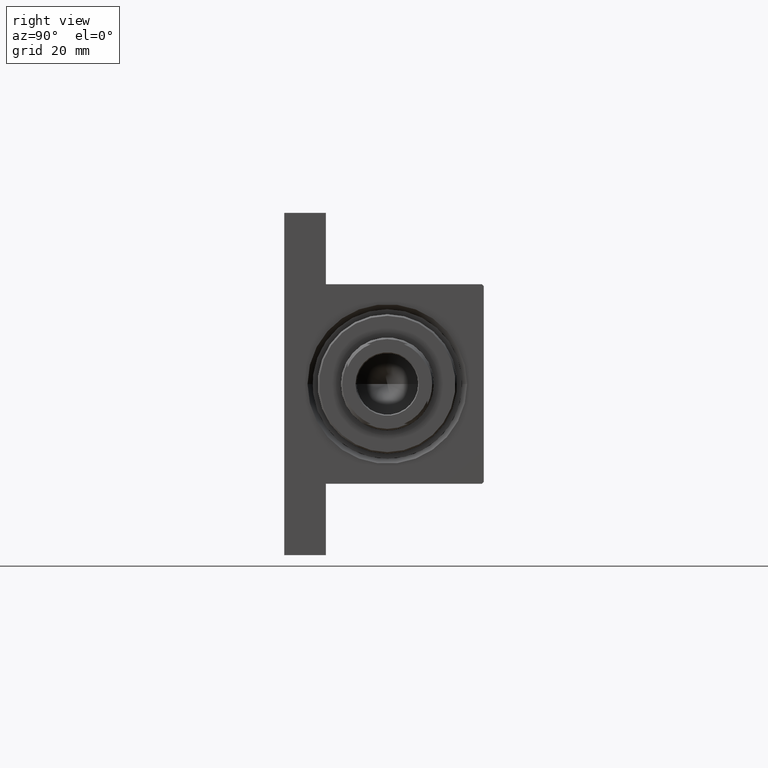
[diagram: clean part render]
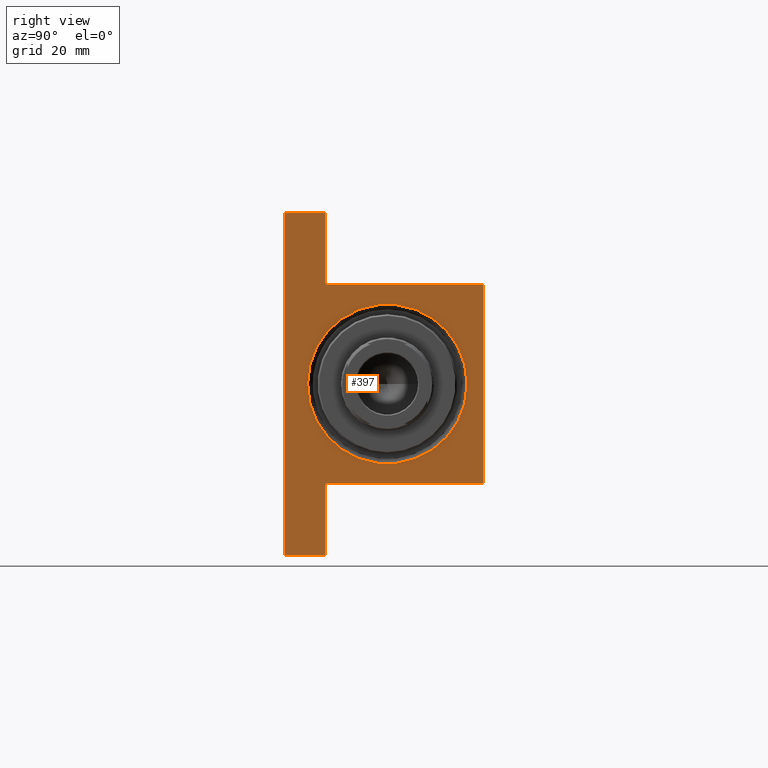
[diagram: same view with one face highlighted and labeled with its STEP entity id]
A machine part, right view. The second image highlights one B-rep face of the part: STEP entity #397.
In plain terms, the highlighted planar face has unit normal (-1, 0, -0).
Its self-contained STEP definition (entity closure, byte-faithful):
#397 = ADVANCED_FACE ( 'NONE', ( #36054, #32455 ), #28845, .F. ) ;
#1540 = EDGE_CURVE ( 'NONE', #20537, #38139, #46615, .T. ) ;
#1809 = EDGE_LOOP ( 'NONE', ( #5631, #42884, #3655, #31156, #26197, #46507, #36098, #4290, #39528, #9255 ) ) ;
#2834 = EDGE_CURVE ( 'NONE', #14521, #26258, #32955, .T. ) ;
#3388 = EDGE_CURVE ( 'NONE', #34778, #31092, #37970, .T. ) ;
#3655 = ORIENTED_EDGE ( 'NONE', *, *, #4342, .T. ) ;
#3898 = LINE ( 'NONE', #33020, #22372 ) ;
#4280 = VERTEX_POINT ( 'NONE', #6392 ) ;
#4290 = ORIENTED_EDGE ( 'NONE', *, *, #13857, .F. ) ;
#4342 = EDGE_CURVE ( 'NONE', #37362, #4280, #7577, .T. ) ;
#4393 = DIRECTION ( 'NONE',  ( 0.000000000000000000, -1.000000000000000000, 0.000000000000000000 ) ) ;
#4434 = CARTESIAN_POINT ( 'NONE',  ( 148.0000000000000000, -30.00000000000000000, -17.49999999999998224 ) ) ;
#4652 = DIRECTION ( 'NONE',  ( -1.000000000000000000, 0.000000000000000000, -0.000000000000000000 ) ) ;
#4833 = LINE ( 'NONE', #19527, #20790 ) ;
#4923 = AXIS2_PLACEMENT_3D ( 'NONE', #30193, #10959, #41246 ) ;
#5401 = EDGE_CURVE ( 'NONE', #42282, #7581, #33289, .T. ) ;
#5631 = ORIENTED_EDGE ( 'NONE', *, *, #46472, .F. ) ;
#6392 = CARTESIAN_POINT ( 'NONE',  ( 148.0000000000000000, -29.50000000000002487, 29.99999999999999289 ) ) ;
#6655 = LINE ( 'NONE', #40325, #37513 ) ;
#7267 = LINE ( 'NONE', #21947, #24039 ) ;
#7362 = CARTESIAN_POINT ( 'NONE',  ( 148.0000000000000000, 0.000000000000000000, -23.00000000000003197 ) ) ;
#7577 = LINE ( 'NONE', #34056, #32651 ) ;
#7581 = VERTEX_POINT ( 'NONE', #36538 ) ;
#7984 = CARTESIAN_POINT ( 'NONE',  ( 148.0000000000000000, 29.50000000000000000, 30.00000000000000000 ) ) ;
#8407 = EDGE_CURVE ( 'NONE', #31092, #34778, #14311, .T. ) ;
#9255 = ORIENTED_EDGE ( 'NONE', *, *, #5401, .T. ) ;
#10853 = EDGE_LOOP ( 'NONE', ( #47079, #32091 ) ) ;
#10959 = DIRECTION ( 'NONE',  ( -1.000000000000000000, 0.000000000000000000, -0.000000000000000000 ) ) ;
#13857 = EDGE_CURVE ( 'NONE', #27020, #26258, #6655, .T. ) ;
#14311 = CIRCLE ( 'NONE', #37344, 24.00000000000003908 ) ;
#14363 = CARTESIAN_POINT ( 'NONE',  ( 148.0000000000000000, -30.00000000000000000, 29.99999999999999289 ) ) ;
#14521 = VERTEX_POINT ( 'NONE', #23671 ) ;
#14743 = DIRECTION ( 'NONE',  ( 0.000000000000000000, 0.000000000000000000, -1.000000000000000000 ) ) ;
#16009 = VECTOR ( 'NONE', #23597, 1000.000000000000000 ) ;
#17281 = DIRECTION ( 'NONE',  ( 0.000000000000000000, -1.000000000000000000, -1.156482317317871478E-16 ) ) ;
#18978 = VERTEX_POINT ( 'NONE', #23457 ) ;
#19348 = DIRECTION ( 'NONE',  ( 0.000000000000000000, 0.000000000000000000, 1.000000000000000000 ) ) ;
#19527 = CARTESIAN_POINT ( 'NONE',  ( 148.0000000000000000, -51.50000000000000711, -17.49999999999999645 ) ) ;
#20537 = VERTEX_POINT ( 'NONE', #33186 ) ;
#20790 = VECTOR ( 'NONE', #34434, 1000.000000000000000 ) ;
#21947 = CARTESIAN_POINT ( 'NONE',  ( 148.0000000000000000, 30.00000000000000000, 30.00000000000000000 ) ) ;
#22034 = AXIS2_PLACEMENT_3D ( 'NONE', #39416, #39885, #43990 ) ;
#22372 = VECTOR ( 'NONE', #14743, 1000.000000000000000 ) ;
#22665 = DIRECTION ( 'NONE',  ( 0.000000000000000000, -0.7071067811865474617, 0.7071067811865474617 ) ) ;
#22692 = CARTESIAN_POINT ( 'NONE',  ( 148.0000000000000000, 51.49999999999999289, -17.49999999999999645 ) ) ;
#23044 = EDGE_CURVE ( 'NONE', #38139, #14521, #4833, .T. ) ;
#23453 = VECTOR ( 'NONE', #36319, 1000.000000000000000 ) ;
#23457 = CARTESIAN_POINT ( 'NONE',  ( 148.0000000000000000, 30.00000000000000000, 29.50000000000000000 ) ) ;
#23597 = DIRECTION ( 'NONE',  ( -0.000000000000000000, -0.7071067811865671127, -0.7071067811865279218 ) ) ;
#23671 = CARTESIAN_POINT ( 'NONE',  ( 148.0000000000000000, -51.50000000000000711, -17.49999999999999645 ) ) ;
#23728 = EDGE_CURVE ( 'NONE', #42282, #27020, #3898, .T. ) ;
#24039 = VECTOR ( 'NONE', #36620, 1000.000000000000000 ) ;
#26197 = ORIENTED_EDGE ( 'NONE', *, *, #1540, .T. ) ;
#26258 = VERTEX_POINT ( 'NONE', #27386 ) ;
#27020 = VERTEX_POINT ( 'NONE', #30349 ) ;
#27164 = CARTESIAN_POINT ( 'NONE',  ( 148.0000000000000000, 51.49999999999999289, -17.49999999999999645 ) ) ;
#27209 = CARTESIAN_POINT ( 'NONE',  ( 148.0000000000000000, -30.00000000000000000, 29.50000000000004619 ) ) ;
#27386 = CARTESIAN_POINT ( 'NONE',  ( 148.0000000000000000, -51.50000000000000711, -29.99999999999999645 ) ) ;
#27918 = LINE ( 'NONE', #27209, #16009 ) ;
#28649 = CARTESIAN_POINT ( 'NONE',  ( 148.0000000000000000, 29.50000000000000000, 30.00000000000000000 ) ) ;
#28845 = PLANE ( 'NONE',  #22034 ) ;
#30193 = CARTESIAN_POINT ( 'NONE',  ( 148.0000000000000000, 0.000000000000000000, 1.000000000000007772 ) ) ;
#30349 = CARTESIAN_POINT ( 'NONE',  ( 148.0000000000000000, 51.49999999999999289, -29.99999999999999645 ) ) ;
#30665 = EDGE_CURVE ( 'NONE', #4280, #20537, #27918, .T. ) ;
#31092 = VERTEX_POINT ( 'NONE', #7362 ) ;
#31156 = ORIENTED_EDGE ( 'NONE', *, *, #30665, .T. ) ;
#32091 = ORIENTED_EDGE ( 'NONE', *, *, #3388, .T. ) ;
#32455 = FACE_OUTER_BOUND ( 'NONE', #1809, .T. ) ;
#32643 = DIRECTION ( 'NONE',  ( 0.000000000000000000, 0.000000000000000000, -1.000000000000000000 ) ) ;
#32651 = VECTOR ( 'NONE', #33570, 1000.000000000000000 ) ;
#32955 = LINE ( 'NONE', #44018, #23453 ) ;
#33020 = CARTESIAN_POINT ( 'NONE',  ( 148.0000000000000000, 51.49999999999999289, -17.49999999999999645 ) ) ;
#33186 = CARTESIAN_POINT ( 'NONE',  ( 148.0000000000000000, -30.00000000000000000, 29.50000000000004619 ) ) ;
#33289 = LINE ( 'NONE', #22692, #33449 ) ;
#33449 = VECTOR ( 'NONE', #4393, 1000.000000000000000 ) ;
#33570 = DIRECTION ( 'NONE',  ( 0.000000000000000000, -1.000000000000000000, -1.156482317317871478E-16 ) ) ;
#34056 = CARTESIAN_POINT ( 'NONE',  ( 148.0000000000000000, 30.00000000000000000, 30.00000000000000000 ) ) ;
#34434 = DIRECTION ( 'NONE',  ( -0.000000000000000000, -1.000000000000000000, -0.000000000000000000 ) ) ;
#34778 = VERTEX_POINT ( 'NONE', #42842 ) ;
#36054 = FACE_BOUND ( 'NONE', #10853, .T. ) ;
#36098 = ORIENTED_EDGE ( 'NONE', *, *, #2834, .T. ) ;
#36319 = DIRECTION ( 'NONE',  ( 0.000000000000000000, 0.000000000000000000, -1.000000000000000000 ) ) ;
#36497 = EDGE_CURVE ( 'NONE', #18978, #37362, #45273, .T. ) ;
#36538 = CARTESIAN_POINT ( 'NONE',  ( 148.0000000000000000, 29.99999999999999289, -17.49999999999999645 ) ) ;
#36620 = DIRECTION ( 'NONE',  ( 0.000000000000000000, 0.000000000000000000, -1.000000000000000000 ) ) ;
#37344 = AXIS2_PLACEMENT_3D ( 'NONE', #45314, #4652, #19348 ) ;
#37362 = VERTEX_POINT ( 'NONE', #28649 ) ;
#37513 = VECTOR ( 'NONE', #17281, 1000.000000000000000 ) ;
#37970 = CIRCLE ( 'NONE', #4923, 24.00000000000003908 ) ;
#38139 = VERTEX_POINT ( 'NONE', #4434 ) ;
#39222 = VECTOR ( 'NONE', #22665, 1000.000000000000114 ) ;
#39416 = CARTESIAN_POINT ( 'NONE',  ( 148.0000000000000000, 0.000000000000000000, 0.000000000000000000 ) ) ;
#39528 = ORIENTED_EDGE ( 'NONE', *, *, #23728, .F. ) ;
#39530 = VECTOR ( 'NONE', #32643, 1000.000000000000000 ) ;
#39885 = DIRECTION ( 'NONE',  ( -1.000000000000000000, 0.000000000000000000, -0.000000000000000000 ) ) ;
#40325 = CARTESIAN_POINT ( 'NONE',  ( 148.0000000000000000, 30.00000000000000000, -29.99999999999999289 ) ) ;
#41246 = DIRECTION ( 'NONE',  ( 0.000000000000000000, 0.000000000000000000, 1.000000000000000000 ) ) ;
#42282 = VERTEX_POINT ( 'NONE', #27164 ) ;
#42842 = CARTESIAN_POINT ( 'NONE',  ( 148.0000000000000000, 2.939152317953652628E-15, 25.00000000000004619 ) ) ;
#42884 = ORIENTED_EDGE ( 'NONE', *, *, #36497, .T. ) ;
#43990 = DIRECTION ( 'NONE',  ( -0.000000000000000000, 0.000000000000000000, 1.000000000000000000 ) ) ;
#44018 = CARTESIAN_POINT ( 'NONE',  ( 148.0000000000000000, -51.50000000000000711, -17.49999999999999645 ) ) ;
#45273 = LINE ( 'NONE', #7984, #39222 ) ;
#45314 = CARTESIAN_POINT ( 'NONE',  ( 148.0000000000000000, 0.000000000000000000, 1.000000000000007772 ) ) ;
#46472 = EDGE_CURVE ( 'NONE', #18978, #7581, #7267, .T. ) ;
#46507 = ORIENTED_EDGE ( 'NONE', *, *, #23044, .T. ) ;
#46615 = LINE ( 'NONE', #14363, #39530 ) ;
#47079 = ORIENTED_EDGE ( 'NONE', *, *, #8407, .T. ) ;